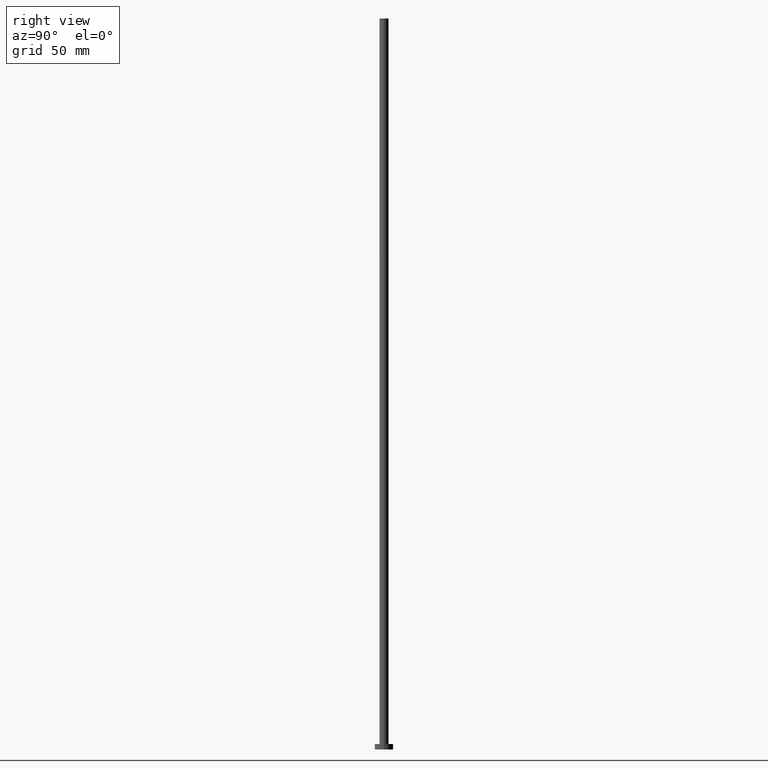
[diagram: clean part render]
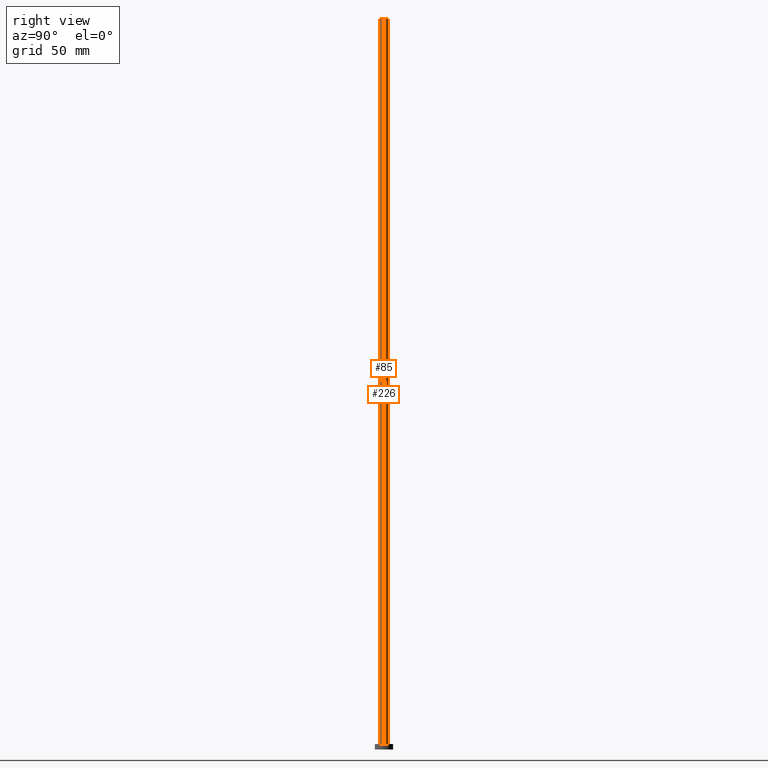
[diagram: same view with one multi-face feature highlighted, each face labeled with its STEP entity id]
A machine part, right view. The highlighted faces form ONE feature: a constant-radius fillet chain: 2 tangent blend faces with common blend radius 2.5 mm. The faces share edges in the B-rep.
Their STEP definitions:
[1] entity #85 (Cylinder):
#1 = EDGE_CURVE ( 'NONE', #74, #34, #201, .T. ) ;
#12 = ORIENTED_EDGE ( 'NONE', *, *, #26, .T. ) ;
#16 = DIRECTION ( 'NONE',  ( 1.000000000000000000, 0.000000000000000000, 0.000000000000000000 ) ) ;
#17 = AXIS2_PLACEMENT_3D ( 'NONE', #123, #203, #99 ) ;
#26 = EDGE_CURVE ( 'NONE', #252, #34, #54, .T. ) ;
#29 = AXIS2_PLACEMENT_3D ( 'NONE', #141, #183, #16 ) ;
#34 = VERTEX_POINT ( 'NONE', #101 ) ;
#37 = VECTOR ( 'NONE', #191, 1000.000000000000000 ) ;
#54 = CIRCLE ( 'NONE', #65, 2.500000000000000000 ) ;
#57 = FACE_OUTER_BOUND ( 'NONE', #250, .T. ) ;
#58 = CARTESIAN_POINT ( 'NONE',  ( 2.500000000000000000, 3.061616997868383141E-16, 400.0000000000000000 ) ) ;
#61 = DIRECTION ( 'NONE',  ( -0.000000000000000000, -0.000000000000000000, -1.000000000000000000 ) ) ;
#64 = CARTESIAN_POINT ( 'NONE',  ( -2.500000000000000000, 0.000000000000000000, 400.0000000000000000 ) ) ;
#65 = AXIS2_PLACEMENT_3D ( 'NONE', #81, #220, #78 ) ;
#74 = VERTEX_POINT ( 'NONE', #58 ) ;
#76 = EDGE_CURVE ( 'NONE', #135, #74, #213, .T. ) ;
#78 = DIRECTION ( 'NONE',  ( 1.000000000000000000, 0.000000000000000000, 0.000000000000000000 ) ) ;
#81 = CARTESIAN_POINT ( 'NONE',  ( 0.000000000000000000, 0.000000000000000000, 3.000000000000000000 ) ) ;
#85 = ADVANCED_FACE ( 'NONE', ( #57 ), #140, .T. ) ;
#99 = DIRECTION ( 'NONE',  ( -1.000000000000000000, 0.000000000000000000, 0.000000000000000000 ) ) ;
#101 = CARTESIAN_POINT ( 'NONE',  ( 2.500000000000000000, 3.061616997868383141E-16, 3.000000000000000000 ) ) ;
#123 = CARTESIAN_POINT ( 'NONE',  ( 0.000000000000000000, 0.000000000000000000, 400.0000000000000000 ) ) ;
#135 = VERTEX_POINT ( 'NONE', #168 ) ;
#140 = CYLINDRICAL_SURFACE ( 'NONE', #17, 2.500000000000000000 ) ;
#141 = CARTESIAN_POINT ( 'NONE',  ( 0.000000000000000000, 0.000000000000000000, 400.0000000000000000 ) ) ;
#143 = VECTOR ( 'NONE', #61, 1000.000000000000000 ) ;
#158 = CARTESIAN_POINT ( 'NONE',  ( 2.500000000000000000, 3.061616997868383141E-16, 400.0000000000000000 ) ) ;
#159 = EDGE_CURVE ( 'NONE', #135, #252, #212, .T. ) ;
#168 = CARTESIAN_POINT ( 'NONE',  ( -2.500000000000000000, 0.000000000000000000, 400.0000000000000000 ) ) ;
#183 = DIRECTION ( 'NONE',  ( 0.000000000000000000, 0.000000000000000000, 1.000000000000000000 ) ) ;
#191 = DIRECTION ( 'NONE',  ( -0.000000000000000000, -0.000000000000000000, -1.000000000000000000 ) ) ;
#201 = LINE ( 'NONE', #158, #143 ) ;
#203 = DIRECTION ( 'NONE',  ( -0.000000000000000000, -0.000000000000000000, -1.000000000000000000 ) ) ;
#212 = LINE ( 'NONE', #64, #37 ) ;
#213 = CIRCLE ( 'NONE', #29, 2.500000000000000000 ) ;
#220 = DIRECTION ( 'NONE',  ( 0.000000000000000000, 0.000000000000000000, 1.000000000000000000 ) ) ;
#221 = ORIENTED_EDGE ( 'NONE', *, *, #159, .T. ) ;
#231 = ORIENTED_EDGE ( 'NONE', *, *, #76, .F. ) ;
#233 = ORIENTED_EDGE ( 'NONE', *, *, #1, .F. ) ;
#235 = CARTESIAN_POINT ( 'NONE',  ( -2.500000000000000000, 0.000000000000000000, 3.000000000000000000 ) ) ;
#250 = EDGE_LOOP ( 'NONE', ( #233, #231, #221, #12 ) ) ;
#252 = VERTEX_POINT ( 'NONE', #235 ) ;
[2] entity #226 (Cylinder):
#1 = EDGE_CURVE ( 'NONE', #74, #34, #201, .T. ) ;
#22 = DIRECTION ( 'NONE',  ( 1.000000000000000000, 0.000000000000000000, 0.000000000000000000 ) ) ;
#27 = ORIENTED_EDGE ( 'NONE', *, *, #1, .T. ) ;
#31 = DIRECTION ( 'NONE',  ( -1.000000000000000000, 0.000000000000000000, 0.000000000000000000 ) ) ;
#34 = VERTEX_POINT ( 'NONE', #101 ) ;
#37 = VECTOR ( 'NONE', #191, 1000.000000000000000 ) ;
#41 = CARTESIAN_POINT ( 'NONE',  ( 0.000000000000000000, 0.000000000000000000, 400.0000000000000000 ) ) ;
#52 = EDGE_LOOP ( 'NONE', ( #115, #27, #93, #255 ) ) ;
#58 = CARTESIAN_POINT ( 'NONE',  ( 2.500000000000000000, 3.061616997868383141E-16, 400.0000000000000000 ) ) ;
#61 = DIRECTION ( 'NONE',  ( -0.000000000000000000, -0.000000000000000000, -1.000000000000000000 ) ) ;
#64 = CARTESIAN_POINT ( 'NONE',  ( -2.500000000000000000, 0.000000000000000000, 400.0000000000000000 ) ) ;
#74 = VERTEX_POINT ( 'NONE', #58 ) ;
#82 = DIRECTION ( 'NONE',  ( 0.000000000000000000, 0.000000000000000000, 1.000000000000000000 ) ) ;
#87 = AXIS2_PLACEMENT_3D ( 'NONE', #210, #82, #246 ) ;
#93 = ORIENTED_EDGE ( 'NONE', *, *, #113, .T. ) ;
#101 = CARTESIAN_POINT ( 'NONE',  ( 2.500000000000000000, 3.061616997868383141E-16, 3.000000000000000000 ) ) ;
#106 = DIRECTION ( 'NONE',  ( -0.000000000000000000, -0.000000000000000000, -1.000000000000000000 ) ) ;
#113 = EDGE_CURVE ( 'NONE', #34, #252, #133, .T. ) ;
#115 = ORIENTED_EDGE ( 'NONE', *, *, #209, .F. ) ;
#127 = DIRECTION ( 'NONE',  ( 0.000000000000000000, 0.000000000000000000, 1.000000000000000000 ) ) ;
#128 = FACE_OUTER_BOUND ( 'NONE', #52, .T. ) ;
#133 = CIRCLE ( 'NONE', #87, 2.500000000000000000 ) ;
#135 = VERTEX_POINT ( 'NONE', #168 ) ;
#143 = VECTOR ( 'NONE', #61, 1000.000000000000000 ) ;
#158 = CARTESIAN_POINT ( 'NONE',  ( 2.500000000000000000, 3.061616997868383141E-16, 400.0000000000000000 ) ) ;
#159 = EDGE_CURVE ( 'NONE', #135, #252, #212, .T. ) ;
#168 = CARTESIAN_POINT ( 'NONE',  ( -2.500000000000000000, 0.000000000000000000, 400.0000000000000000 ) ) ;
#176 = CIRCLE ( 'NONE', #253, 2.500000000000000000 ) ;
#191 = DIRECTION ( 'NONE',  ( -0.000000000000000000, -0.000000000000000000, -1.000000000000000000 ) ) ;
#192 = CARTESIAN_POINT ( 'NONE',  ( 0.000000000000000000, 0.000000000000000000, 400.0000000000000000 ) ) ;
#201 = LINE ( 'NONE', #158, #143 ) ;
#209 = EDGE_CURVE ( 'NONE', #74, #135, #176, .T. ) ;
#210 = CARTESIAN_POINT ( 'NONE',  ( 0.000000000000000000, 0.000000000000000000, 3.000000000000000000 ) ) ;
#211 = CYLINDRICAL_SURFACE ( 'NONE', #249, 2.500000000000000000 ) ;
#212 = LINE ( 'NONE', #64, #37 ) ;
#226 = ADVANCED_FACE ( 'NONE', ( #128 ), #211, .T. ) ;
#235 = CARTESIAN_POINT ( 'NONE',  ( -2.500000000000000000, 0.000000000000000000, 3.000000000000000000 ) ) ;
#246 = DIRECTION ( 'NONE',  ( 1.000000000000000000, 0.000000000000000000, 0.000000000000000000 ) ) ;
#249 = AXIS2_PLACEMENT_3D ( 'NONE', #192, #106, #31 ) ;
#252 = VERTEX_POINT ( 'NONE', #235 ) ;
#253 = AXIS2_PLACEMENT_3D ( 'NONE', #41, #127, #22 ) ;
#255 = ORIENTED_EDGE ( 'NONE', *, *, #159, .F. ) ;